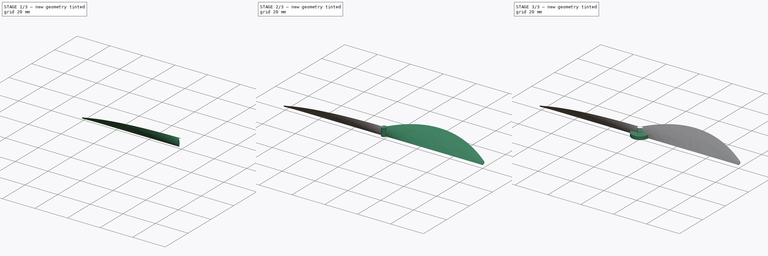
[diagram: build sequence overview — one tinted view per stage of 3, left to right]
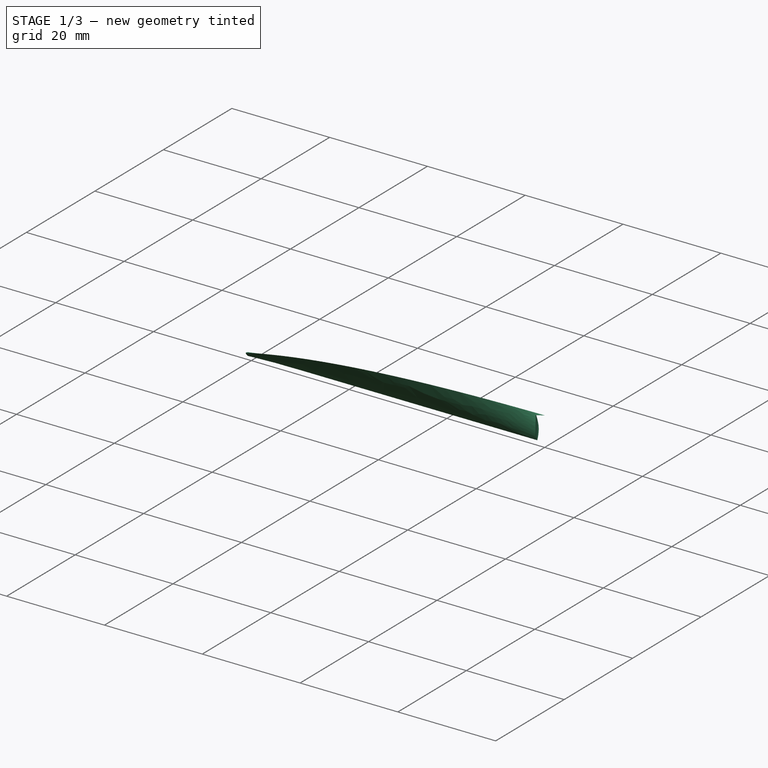
[diagram: stage 1 of 3 — iso view after this stage's code; geometry added in this stage tinted green]
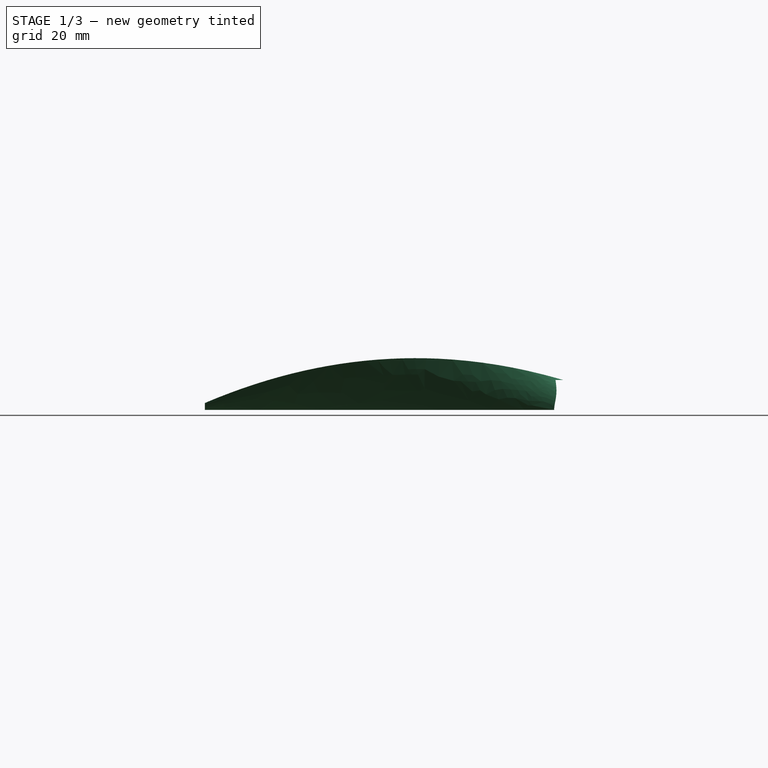
[diagram: stage 1 of 3 — front view after this stage's code; geometry added in this stage tinted green]
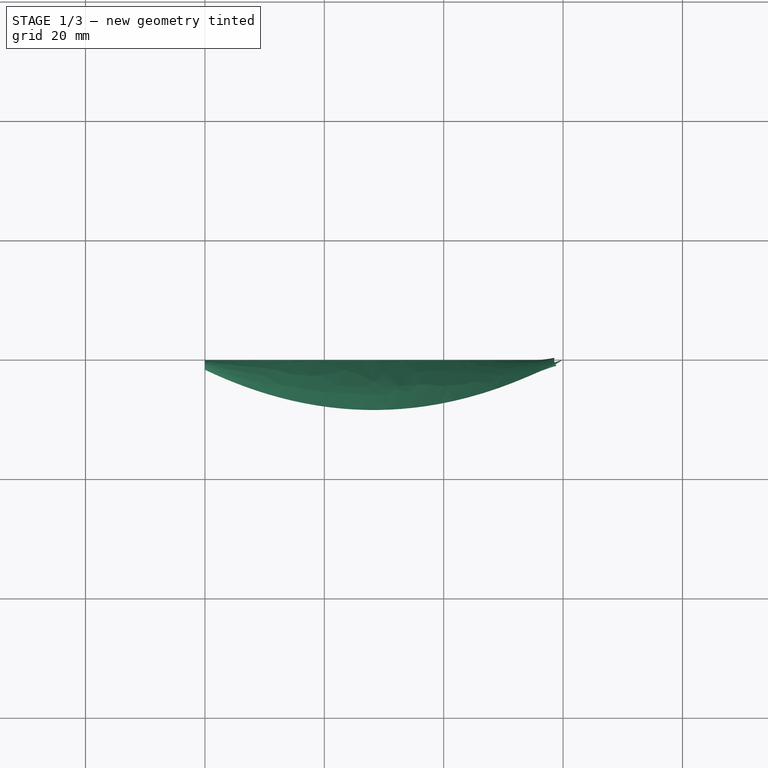
[diagram: stage 1 of 3 — top view after this stage's code; geometry added in this stage tinted green]
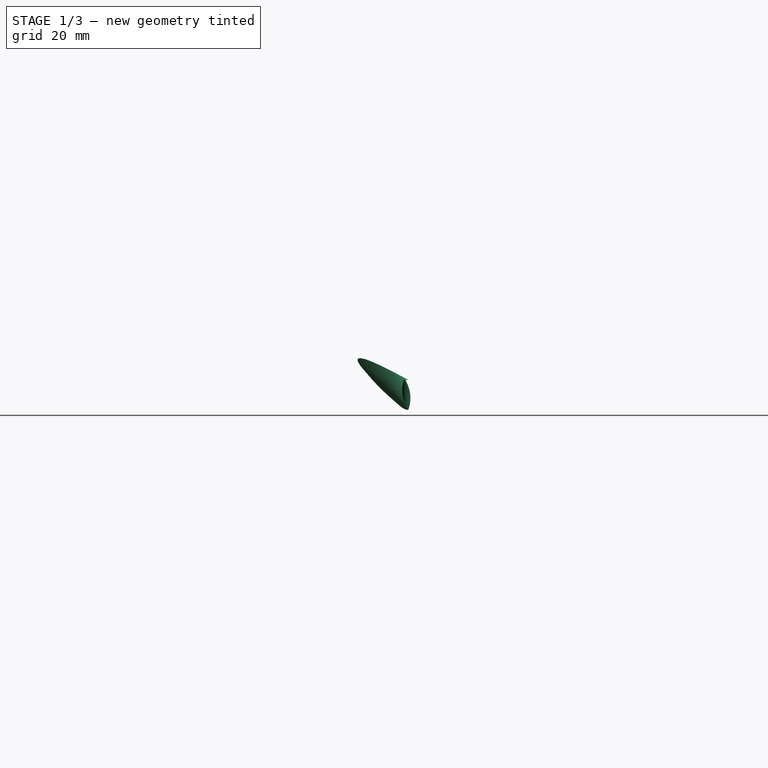
[diagram: stage 1 of 3 — right view after this stage's code; geometry added in this stage tinted green]
FCSTD DOCUMENT  (FreeCAD 0.20R27518 (Git))
Label: simple-propeller
License: Creative Commons Attribution
LicenseURL: http://creativecommons.org/licenses/by/4.0/
objects: Sketcher::SketchObject×7, PartDesign::Plane×4, Part::Loft×2, Part::Cylinder×2, Part::Cut×2, PartDesign::Pad×1, Part::MultiFuse×1, PartDesign::Body×1
note: 21 computed .brp shape members not serialized (recipe doc carries the construction recipe); baked Part::Feature solids carry a one-line shape summary decoded from their .brp

FEATURE [Sketcher::SketchObject] Sketch004
  FullyConstrained = true
  MapMode = 5
  Placement = pos=(0,0,0) rot=(0.57735,0.57735,0.57735;2.0944rad)
  Support = -> [YZ_Plane001]
  sketch-geometry (5):
    g0: LineSegment StartX=0 StartY=1.2e-14 StartZ=0 EndX=-7.11e-14 EndY=5 EndZ=0
    g1: LineSegment StartX=-0.7 StartY=2.5 StartZ=0 EndX=0 EndY=2.5 EndZ=0
    g2: ArcOfCircle CenterX=4.11429 CenterY=2.5 CenterZ=0 NormalX=0 NormalY=0 NormalZ=1 AngleXU=0 Radius=4.81429 StartAngle=2.59558 EndAngle=3.68761
    g3: LineSegment StartX=0 StartY=2.5 StartZ=0 EndX=0.7 EndY=2.5 EndZ=0
    g4: ArcOfCircle CenterX=-4.11429 CenterY=2.5 CenterZ=0 NormalX=0 NormalY=0 NormalZ=1 AngleXU=0 Radius=4.81429 StartAngle=5.73717 EndAngle=6.8292
  constraints (15):
    c: Coincident(g0,g-1)
    c: PointOnObject(g0,g-2)
    c: DistanceY(g0,g0) = 5
    c: Horizontal(g1)
    c: Symmetric(g0,g0,g1)
    c: DistanceX(g1,g1) = 0.7
    c: Coincident(g2,g0)
    c: Coincident(g2,g0)
    c: PointOnObject(g1,g2)
    c: Coincident(g3,g1)
    c: Horizontal(g3)
    c: DistanceX(g3,g3) = 0.7
    c: Coincident(g4,g2)
    c: Coincident(g4,g2)
    c: PointOnObject(g3,g4)
FEATURE [PartDesign::Plane] DatumPlane002
  AttachmentOffset = pos=(0,0,30) rot=(0,0,1;0rad)
  Length = 218.4
  MapMode = 2
  Placement = pos=(30,-3.3e-15,3.3e-15) rot=(0.57735,0.57735,0.57735;2.0944rad)
  ResizeMode = 0
  Support = -> [Sketch004]
  Width = 218.4
FEATURE [Sketcher::SketchObject] Sketch006
  FullyConstrained = true
  MapMode = 5
  Placement = pos=(30,-3.3e-15,3.3e-15) rot=(0.57735,0.57735,0.57735;2.0944rad)
  Support = -> [DatumPlane002]
  sketch-geometry (5):
    g0: LineSegment StartX=-7.1e-15 StartY=7.1e-15 StartZ=0 EndX=8.48528 EndY=8.48528 EndZ=0
    g1: LineSegment StartX=3.88909 StartY=4.59619 StartZ=0 EndX=4.24264 EndY=4.24264 EndZ=0
    g2: LineSegment StartX=4.24264 StartY=4.24264 StartZ=0 EndX=4.59619 EndY=3.88909 EndZ=0
    g3: ArcOfCircle CenterX=-21.0364 CenterY=29.5217 CenterZ=0 NormalX=0 NormalY=0 NormalZ=1 AngleXU=0 Radius=36.25 StartAngle=5.3315 EndAngle=5.66407
    g4: ArcOfCircle CenterX=29.5217 CenterY=-21.0364 CenterZ=0 NormalX=0 NormalY=0 NormalZ=1 AngleXU=0 Radius=36.25 StartAngle=2.18991 EndAngle=2.52248
  constraints (15):
    c: Coincident(g0,g-1)
    c: Perpendicular(g1,g0)
    c: Symmetric(g0,g0,g1)
    c: Distance(g0) = 12
    c: Distance(g1) = 0.5
    c: Coincident(g2,g1)
    c: Distance(g2) = 0.5
    c: Perpendicular(g2,g0)
    c: Angle(g-1,g0) = 0.785398
    c: Coincident(g3,g0)
    c: Coincident(g3,g0)
    c: PointOnObject(g2,g3)
    c: Coincident(g4,g3)
    c: Coincident(g4,g3)
    c: PointOnObject(g1,g4)
FEATURE [PartDesign::Plane] DatumPlane003
  AttachmentOffset = pos=(0,0,30) rot=(0,0,1;0rad)
  Length = 218.4
  MapMode = 2
  Placement = pos=(60,-3.3e-15,3.3e-15) rot=(0.57735,0.57735,0.57735;2.0944rad)
  ResizeMode = 0
  Support = -> [Sketch006]
  Width = 218.4
FEATURE [Sketcher::SketchObject] Sketch005
  FullyConstrained = true
  MapMode = 5
  Placement = pos=(60,-3.3e-15,3.3e-15) rot=(0.57735,0.57735,0.57735;2.0944rad)
  Support = -> [DatumPlane003]
  sketch-geometry (5):
    g0: LineSegment StartX=-4e-16 StartY=0 StartZ=0 EndX=1.6383 EndY=1.14715 EndZ=0
    g1: LineSegment StartX=0.647079 StartY=0.819322 StartZ=0 EndX=0.819152 EndY=0.573576 EndZ=0
    g2: LineSegment StartX=0.819152 StartY=0.573576 StartZ=0 EndX=0.991225 EndY=0.327831 EndZ=0
    g3: ArcOfCircle CenterX=1.68908 CenterY=-0.668804 CenterZ=0 NormalX=0 NormalY=0 NormalZ=1 AngleXU=0 Radius=1.81667 StartAngle=1.59875 EndAngle=2.76458
    g4: ArcOfCircle CenterX=-0.0507722 CenterY=1.81596 CenterZ=0 NormalX=0 NormalY=0 NormalZ=1 AngleXU=0 Radius=1.81667 StartAngle=4.74034 EndAngle=5.90617
  constraints (15):
    c: Coincident(g0,g-1)
    c: Distance(g0) = 2
    c: Angle(g-1,g0) = 0.610865
    c: Perpendicular(g1,g0)
    c: Symmetric(g0,g0,g1)
    c: Distance(g1) = 0.3
    c: Coincident(g2,g1)
    c: Perpendicular(g0,g2)
    c: Distance(g2) = 0.3
    c: Coincident(g3,g0)
    c: Coincident(g3,g0)
    c: PointOnObject(g1,g3)
    c: Coincident(g4,g3)
    c: Coincident(g4,g3)
    c: PointOnObject(g2,g4)
FEATURE [Part::Loft] Loft001
  Closed = false
  MaxDegree = 5
  Placement = pos=(0,0,0) rot=(0,0,1;3.14159rad)
  Ruled = false
  Sections = -> [Sketch004,Sketch006,Sketch005]
  Solid = true
FEATURE [Part::Cylinder] Cylinder001
  Angle = 360
  AttacherType = Attacher::AttachEngine3D
  FirstAngle = 0
  Height = 5
  Radius = 1.5
  SecondAngle = 0
FEATURE [Part::Cut] Cut001
  Base = -> Loft001
  Tool = -> Cylinder001
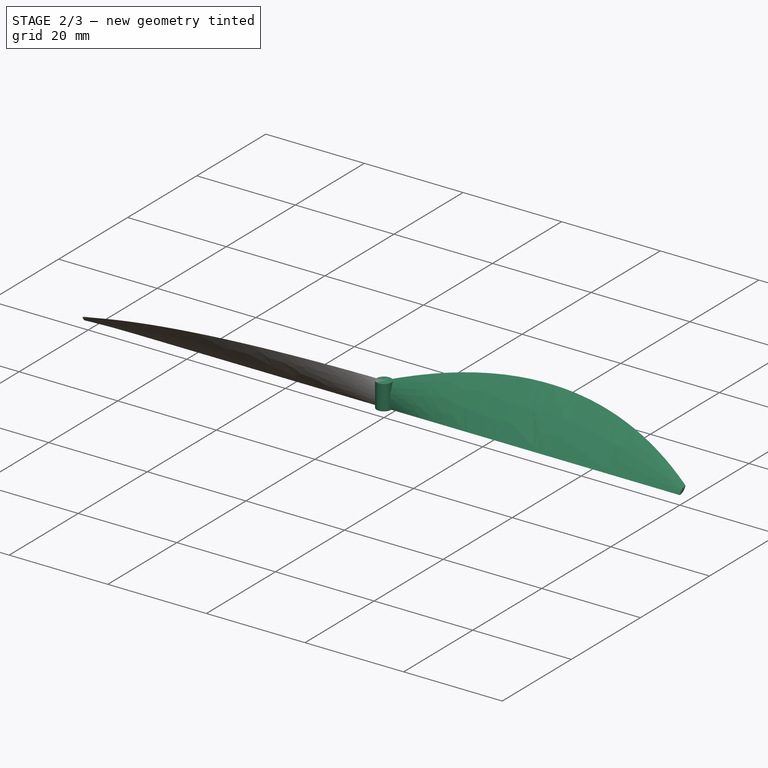
[diagram: stage 2 of 3 — iso view after this stage's code; geometry added in this stage tinted green]
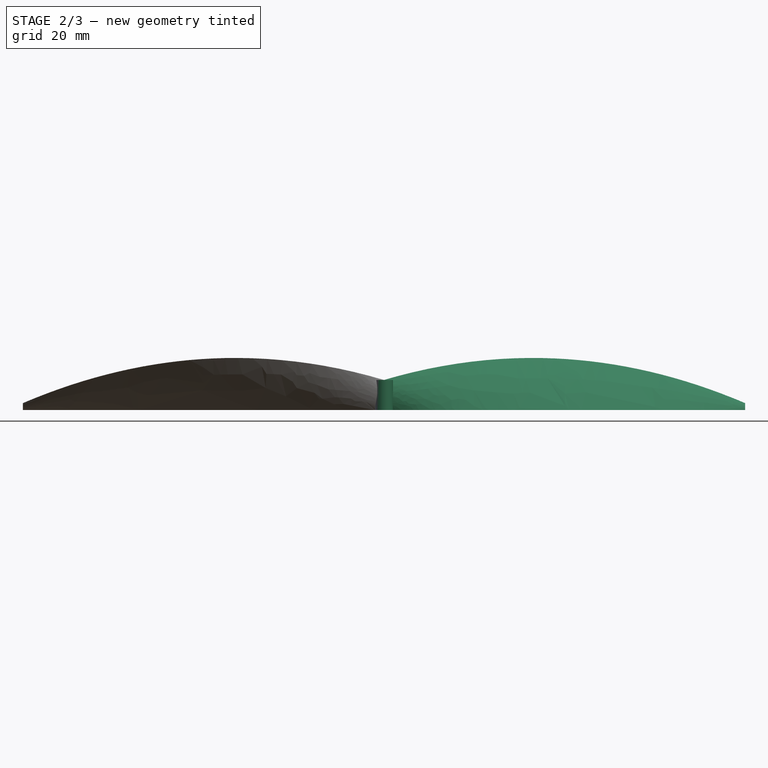
[diagram: stage 2 of 3 — front view after this stage's code; geometry added in this stage tinted green]
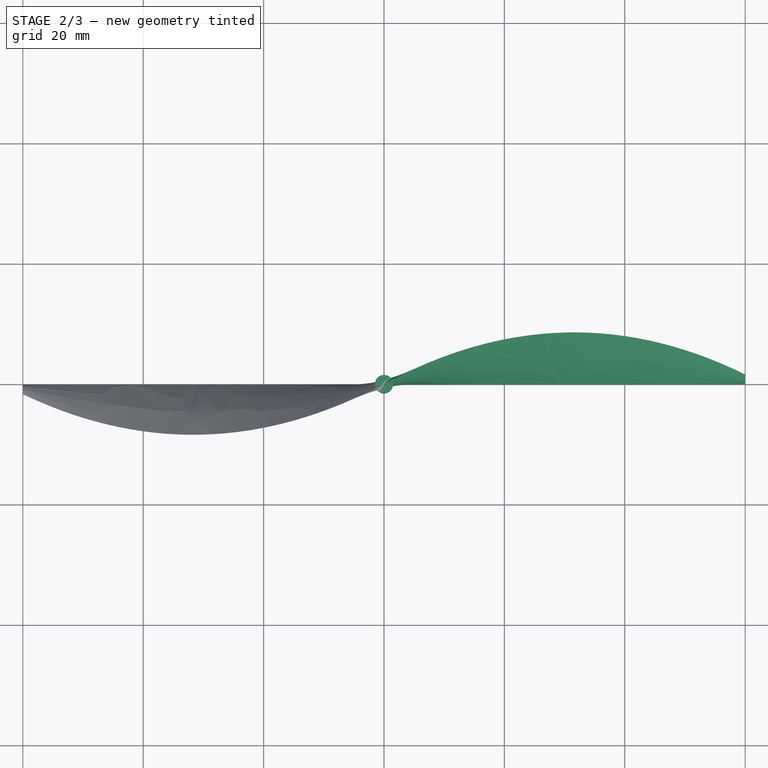
[diagram: stage 2 of 3 — top view after this stage's code; geometry added in this stage tinted green]
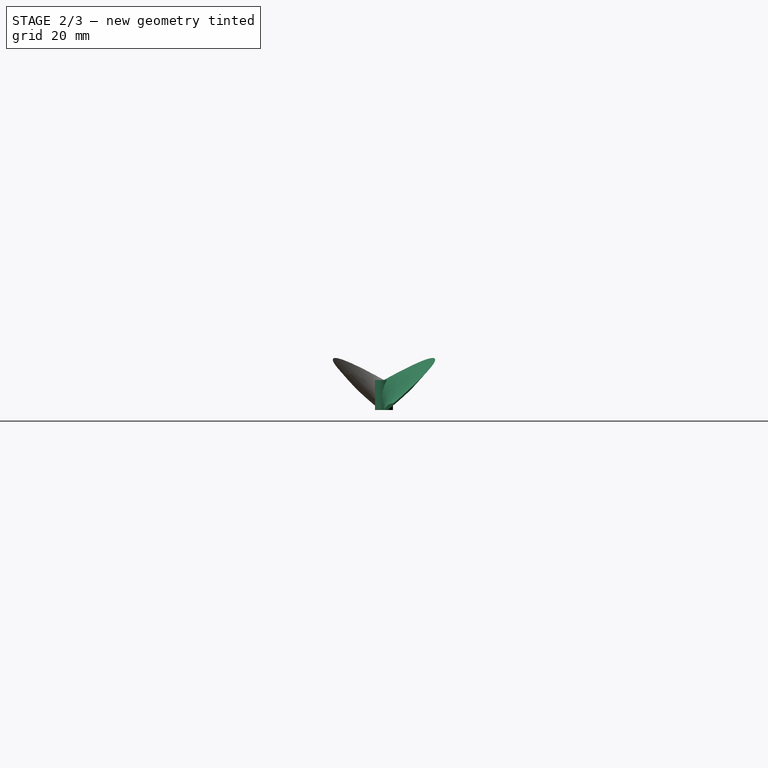
[diagram: stage 2 of 3 — right view after this stage's code; geometry added in this stage tinted green]
FEATURE [Sketcher::SketchObject] Sketch001
  FullyConstrained = true
  MapMode = 5
  Placement = pos=(0,0,0) rot=(0.57735,0.57735,0.57735;2.0944rad)
  Support = -> [YZ_Plane]
  sketch-geometry (5):
    g0: LineSegment StartX=-7.28e-14 StartY=1.11e-14 StartZ=0 EndX=0 EndY=5 EndZ=0
    g1: LineSegment StartX=-0.7 StartY=2.5 StartZ=0 EndX=0 EndY=2.5 EndZ=0
    g2: ArcOfCircle CenterX=4.11429 CenterY=2.5 CenterZ=0 NormalX=0 NormalY=0 NormalZ=1 AngleXU=0 Radius=4.81429 StartAngle=2.59558 EndAngle=3.68761
    g3: LineSegment StartX=0 StartY=2.5 StartZ=0 EndX=0.7 EndY=2.5 EndZ=0
    g4: ArcOfCircle CenterX=-4.11429 CenterY=2.5 CenterZ=0 NormalX=0 NormalY=0 NormalZ=1 AngleXU=0 Radius=4.81429 StartAngle=5.73717 EndAngle=6.8292
  constraints (15):
    c: Coincident(g0,g-1)
    c: PointOnObject(g0,g-2)
    c: DistanceY(g0,g0) = 5
    c: Horizontal(g1)
    c: Symmetric(g0,g0,g1)
    c: DistanceX(g1,g1) = 0.7
    c: Coincident(g2,g0)
    c: Coincident(g2,g0)
    c: PointOnObject(g1,g2)
    c: Coincident(g3,g1)
    c: Horizontal(g3)
    c: DistanceX(g3,g3) = 0.7
    c: Coincident(g4,g2)
    c: Coincident(g4,g2)
    c: PointOnObject(g3,g4)
FEATURE [PartDesign::Plane] DatumPlane
  AttachmentOffset = pos=(0,0,30) rot=(0,0,1;0rad)
  Length = 60
  MapMode = 2
  Placement = pos=(30,-3.3e-15,3.3e-15) rot=(0.57735,0.57735,0.57735;2.0944rad)
  ResizeMode = 0
  Support = -> [Sketch001]
  Width = 60
FEATURE [Sketcher::SketchObject] Sketch002
  FullyConstrained = true
  MapMode = 5
  Placement = pos=(30,-3.3e-15,3.3e-15) rot=(0.57735,0.57735,0.57735;2.0944rad)
  Support = -> [DatumPlane]
  sketch-geometry (5):
    g0: LineSegment StartX=0 StartY=3.6e-15 StartZ=0 EndX=8.48528 EndY=8.48528 EndZ=0
    g1: LineSegment StartX=3.88909 StartY=4.59619 StartZ=0 EndX=4.24264 EndY=4.24264 EndZ=0
    g2: LineSegment StartX=4.24264 StartY=4.24264 StartZ=0 EndX=4.59619 EndY=3.88909 EndZ=0
    g3: ArcOfCircle CenterX=29.5217 CenterY=-21.0364 CenterZ=0 NormalX=0 NormalY=0 NormalZ=1 AngleXU=0 Radius=36.25 StartAngle=2.18991 EndAngle=2.52248
    g4: ArcOfCircle CenterX=-21.0364 CenterY=29.5217 CenterZ=0 NormalX=0 NormalY=0 NormalZ=1 AngleXU=0 Radius=36.25 StartAngle=5.3315 EndAngle=5.66407
  constraints (15):
    c: Coincident(g0,g-1)
    c: Perpendicular(g1,g0)
    c: Symmetric(g0,g0,g1)
    c: Distance(g0) = 12
    c: Distance(g1) = 0.5
    c: Coincident(g2,g1)
    c: Distance(g2) = 0.5
    c: Perpendicular(g2,g0)
    c: Coincident(g3,g0)
    c: Coincident(g3,g0)
    c: PointOnObject(g1,g3)
    c: Coincident(g4,g3)
    c: Coincident(g4,g3)
    c: PointOnObject(g2,g4)
    c: Angle(g-1,g0) = 0.785398
FEATURE [PartDesign::Plane] DatumPlane001
  AttachmentOffset = pos=(0,0,30) rot=(0,0,1;0rad)
  Length = 60
  MapMode = 2
  Placement = pos=(60,-3.3e-15,3.3e-15) rot=(0.57735,0.57735,0.57735;2.0944rad)
  ResizeMode = 0
  Support = -> [Sketch002]
  Width = 60
FEATURE [Sketcher::SketchObject] Sketch003
  FullyConstrained = true
  MapMode = 5
  Placement = pos=(60,-3.3e-15,3.3e-15) rot=(0.57735,0.57735,0.57735;2.0944rad)
  Support = -> [DatumPlane001]
  sketch-geometry (5):
    g0: LineSegment StartX=2e-16 StartY=0 StartZ=0 EndX=1.6383 EndY=1.14715 EndZ=0
    g1: LineSegment StartX=0.647079 StartY=0.819322 StartZ=0 EndX=0.819152 EndY=0.573576 EndZ=0
    g2: LineSegment StartX=0.819152 StartY=0.573576 StartZ=0 EndX=0.991225 EndY=0.327831 EndZ=0
    g3: ArcOfCircle CenterX=1.68908 CenterY=-0.668804 CenterZ=0 NormalX=0 NormalY=0 NormalZ=1 AngleXU=0 Radius=1.81667 StartAngle=1.59875 EndAngle=2.76458
    g4: ArcOfCircle CenterX=-0.0507722 CenterY=1.81596 CenterZ=0 NormalX=0 NormalY=0 NormalZ=1 AngleXU=0 Radius=1.81667 StartAngle=4.74034 EndAngle=5.90617
  constraints (15):
    c: Coincident(g0,g-1)
    c: Distance(g0) = 2
    c: Angle(g-1,g0) = 0.610865
    c: Perpendicular(g1,g0)
    c: Symmetric(g0,g0,g1)
    c: Distance(g1) = 0.3
    c: Coincident(g2,g1)
    c: Perpendicular(g0,g2)
    c: Distance(g2) = 0.3
    c: Coincident(g3,g0)
    c: Coincident(g3,g0)
    c: PointOnObject(g1,g3)
    c: Coincident(g4,g3)
    c: Coincident(g4,g3)
    c: PointOnObject(g2,g4)
FEATURE [Part::Loft] Loft
  Closed = false
  MaxDegree = 5
  Ruled = false
  Sections = -> [Sketch001,Sketch002,Sketch003]
  Solid = true
FEATURE [Part::Cylinder] Cylinder
  Angle = 360
  AttacherType = Attacher::AttachEngine3D
  FirstAngle = 0
  Height = 5
  Radius = 1.5
  SecondAngle = 0
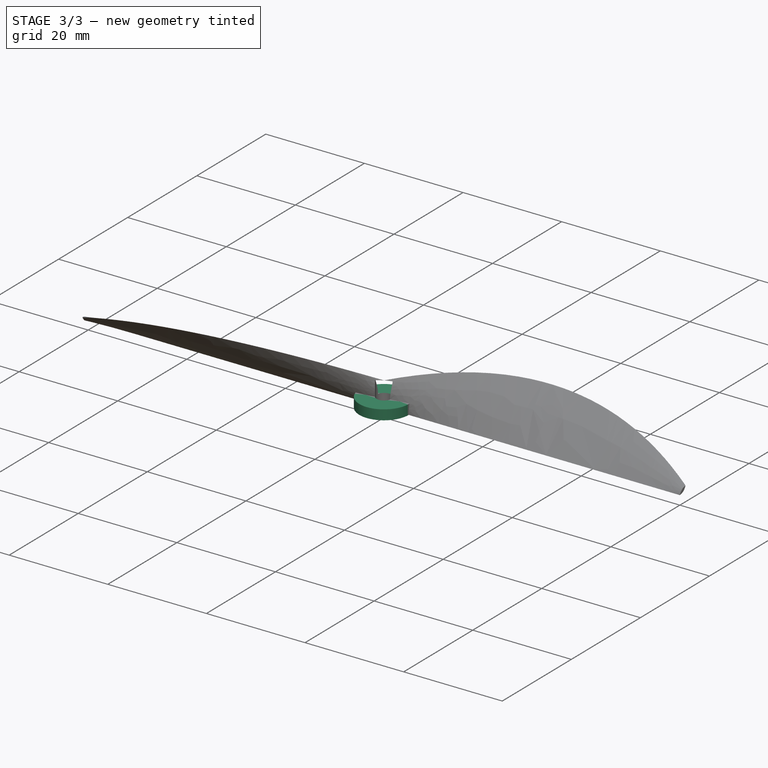
[diagram: stage 3 of 3 — iso view after this stage's code; geometry added in this stage tinted green]
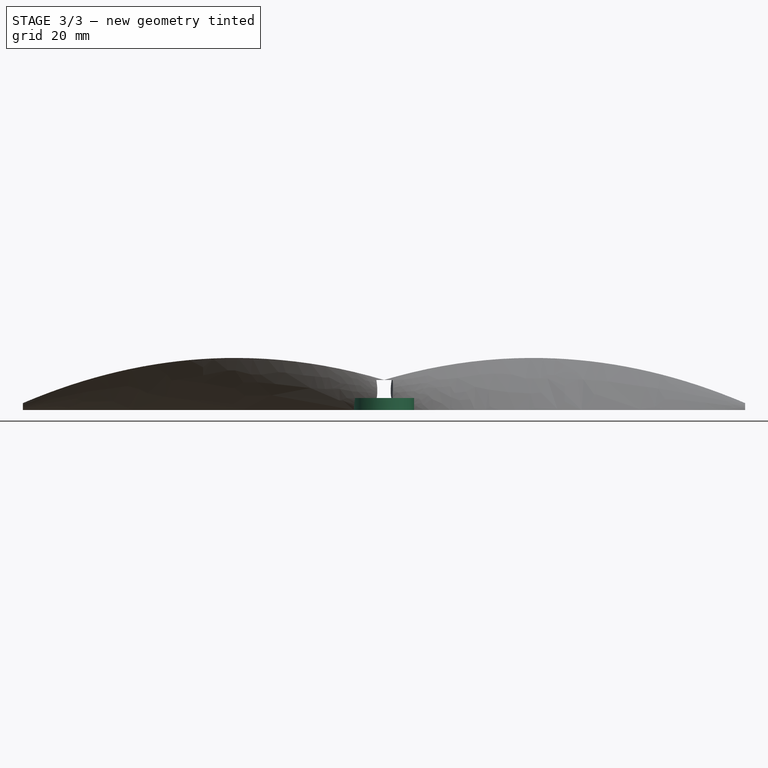
[diagram: stage 3 of 3 — front view after this stage's code; geometry added in this stage tinted green]
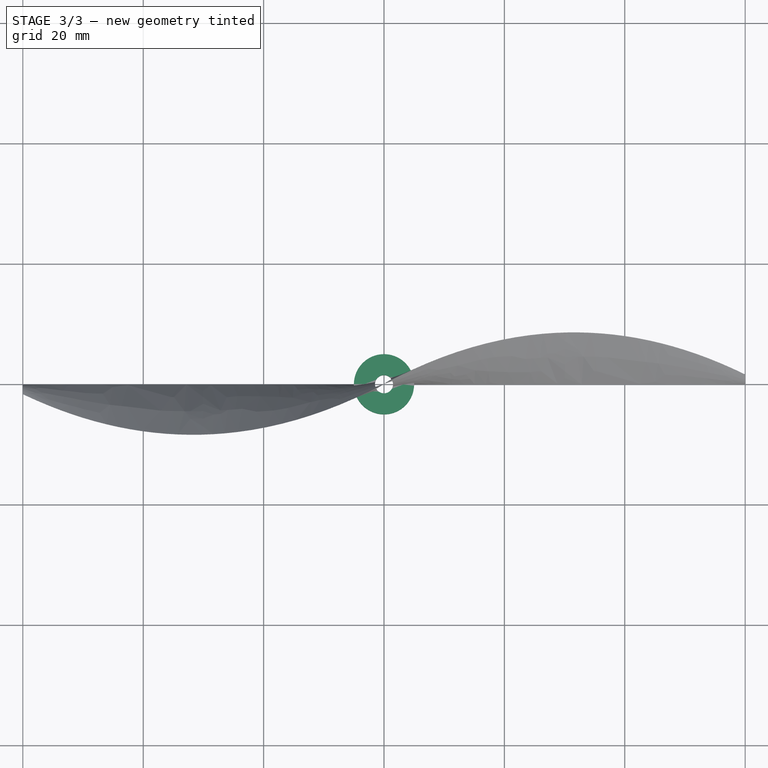
[diagram: stage 3 of 3 — top view after this stage's code; geometry added in this stage tinted green]
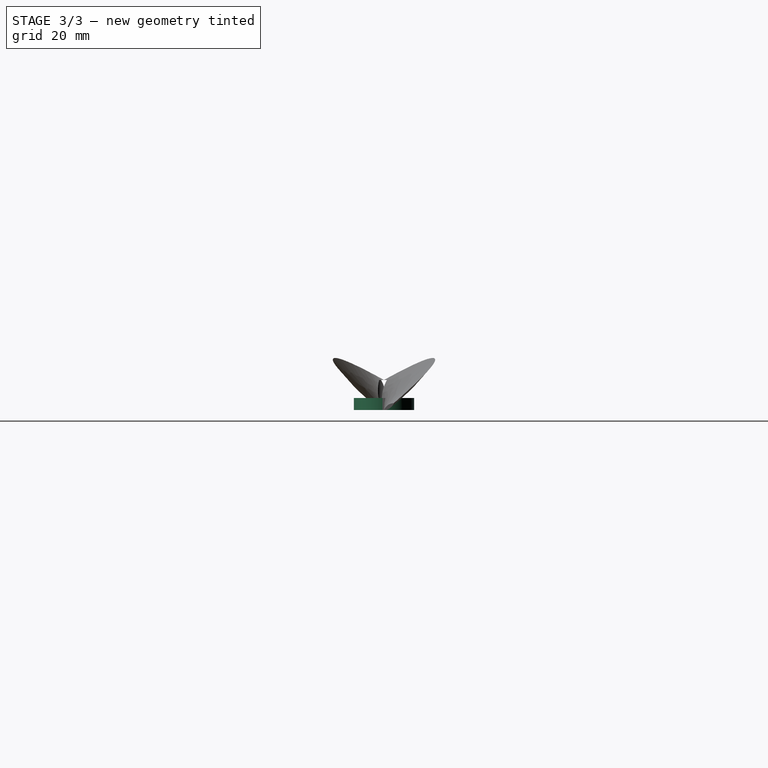
[diagram: stage 3 of 3 — right view after this stage's code; geometry added in this stage tinted green]
FEATURE [Sketcher::SketchObject] Sketch
  FullyConstrained = true
  MapMode = 5
  Support = -> [XY_Plane]
  sketch-geometry (2):
    g0: Circle CenterX=0 CenterY=0 CenterZ=0 NormalX=0 NormalY=0 NormalZ=1 AngleXU=0 Radius=5
    g1: Circle CenterX=0 CenterY=0 CenterZ=0 NormalX=0 NormalY=0 NormalZ=1 AngleXU=0 Radius=1.5
  constraints (4):
    c: Coincident(g0,g-1)
    c: Coincident(g1,g0)
    c: Diameter(g1) = 3
    c: Diameter(g0) = 10
FEATURE [PartDesign::Pad] Pad
  Direction = (0,0,1)
  Length = 2
  Length2 = 10
  Profile = -> Sketch
  ReferenceAxis = -> Sketch [N_Axis]
  Type = 0
FEATURE [Part::Cut] Cut
  Base = -> Loft
  Tool = -> Cylinder
FEATURE [Part::MultiFuse] Fusion
  Shapes = -> [Cut,Cut001,Pad]
FEATURE [PartDesign::Body] Body
  Group = -> [Sketch,Pad,Sketch001,DatumPlane,Sketch002,DatumPlane001,Sketch003,Loft,Loft001,Cylinder,Cut,Cylinder001,Cut001,Fusion]
  Origin = -> Origin
  Tip = -> Pad
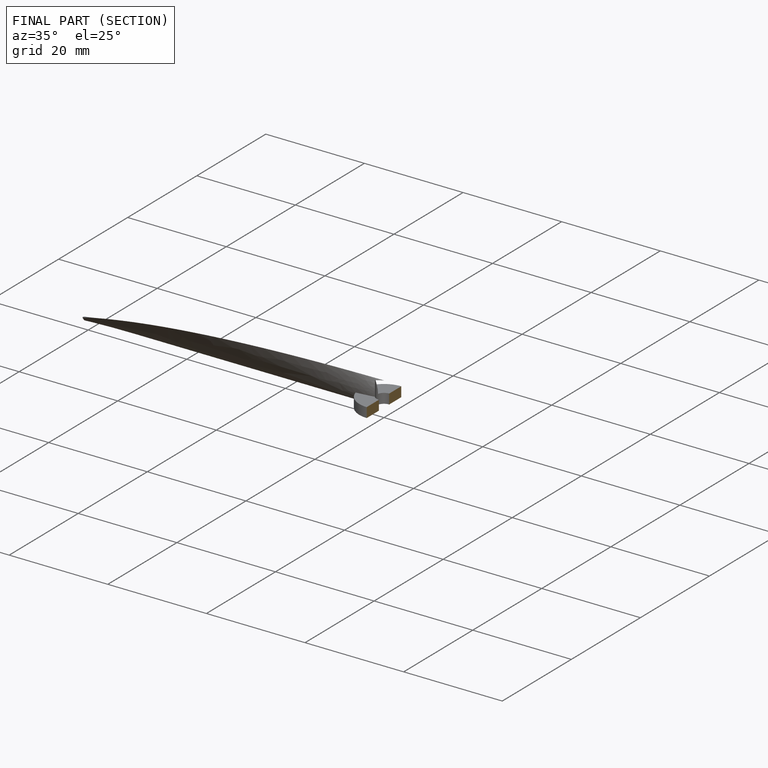
[diagram: finished part — half-section view (interior)]
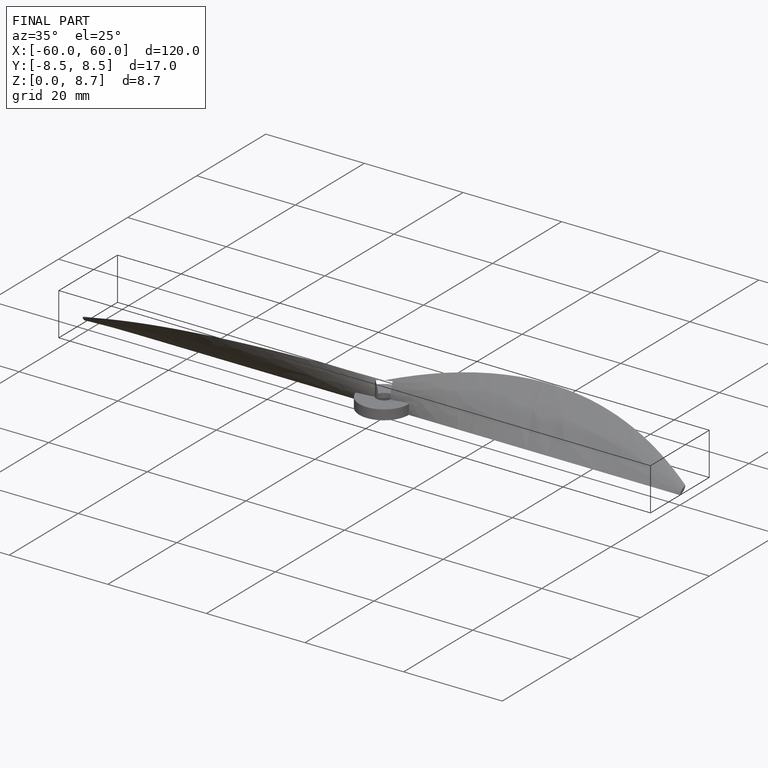
[diagram: finished part — iso view with bounding-box wireframe]
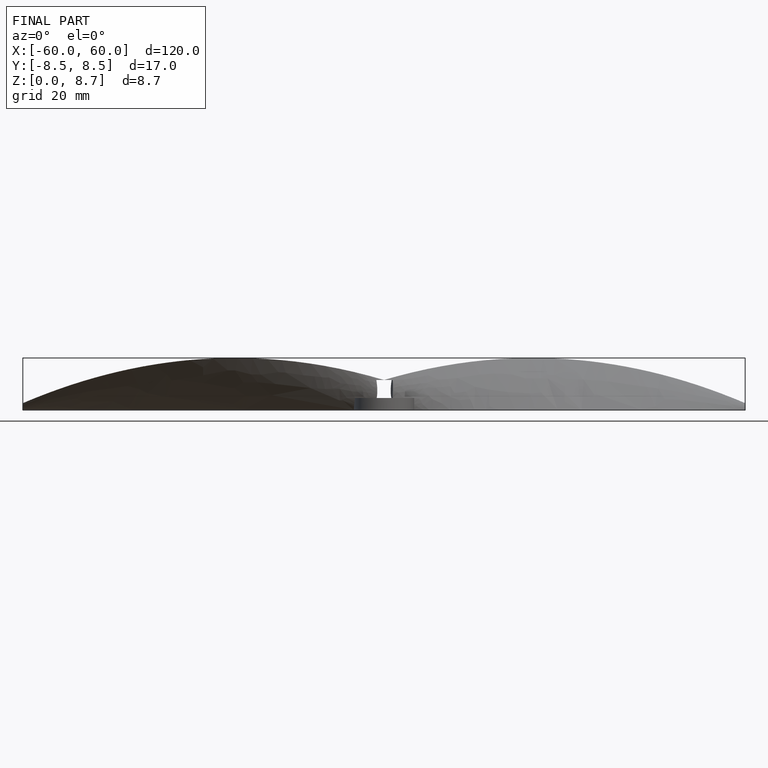
[diagram: finished part — front view with bounding-box wireframe]
